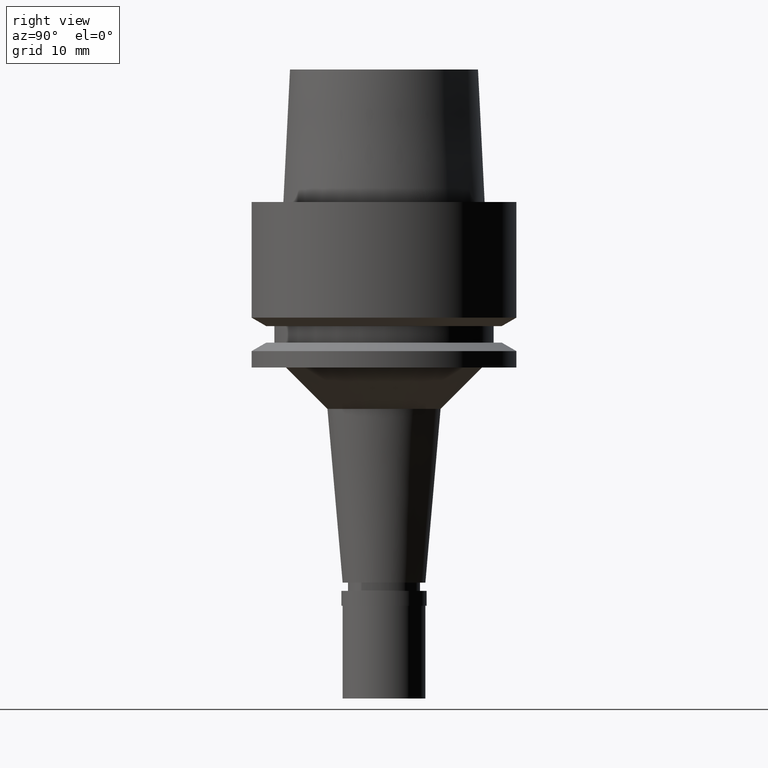
[diagram: clean part render]
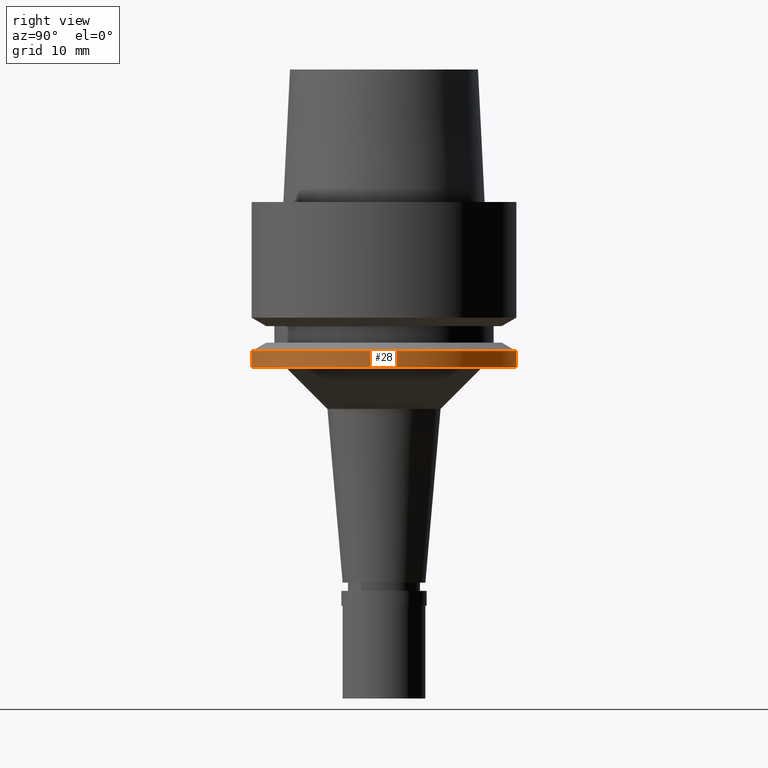
[diagram: same view with one face highlighted and labeled with its STEP entity id]
A machine part, right view. The second image highlights one B-rep face of the part: STEP entity #28.
In plain terms, the highlighted cylindrical surface (partial cylindrical patch) has radius 16 mm, axis along (0, 0, -1).
Its self-contained STEP definition (entity closure, byte-faithful):
#28 = ADVANCED_FACE ( 'NONE', ( #486 ), #1978, .T. ) ;
#260 = CARTESIAN_POINT ( 'NONE',  ( 0.0000000000000000000, -16.00000000000000000, -18.02072594216000212 ) ) ;
#288 = VERTEX_POINT ( 'NONE', #318 ) ;
#307 = DIRECTION ( 'NONE',  ( 0.0000000000000000000, -1.000000000000000000, 0.0000000000000000000 ) ) ;
#318 = CARTESIAN_POINT ( 'NONE',  ( 0.0000000000000000000, -16.00000000000000000, -20.00000000000000000 ) ) ;
#366 = LINE ( 'NONE', #2683, #624 ) ;
#423 = LINE ( 'NONE', #260, #1202 ) ;
#486 = FACE_OUTER_BOUND ( 'NONE', #1888, .T. ) ;
#494 = CARTESIAN_POINT ( 'NONE',  ( 0.0000000000000000000, 0.0000000000000000000, -20.00000000000000000 ) ) ;
#514 = AXIS2_PLACEMENT_3D ( 'NONE', #1126, #903, #307 ) ;
#617 = CARTESIAN_POINT ( 'NONE',  ( 0.0000000000000000000, -16.00000000000000000, -18.02072594216000212 ) ) ;
#624 = VECTOR ( 'NONE', #825, 1000.000000000000000 ) ;
#825 = DIRECTION ( 'NONE',  ( 0.0000000000000000000, 4.783562901008000077E-13, -1.000000000000000000 ) ) ;
#903 = DIRECTION ( 'NONE',  ( 0.0000000000000000000, 0.0000000000000000000, -1.000000000000000000 ) ) ;
#971 = DIRECTION ( 'NONE',  ( 0.0000000000000000000, 0.0000000000000000000, 1.000000000000000000 ) ) ;
#983 = CARTESIAN_POINT ( 'NONE',  ( 0.0000000000000000000, 0.0000000000000000000, -18.02072594216000212 ) ) ;
#1077 = VERTEX_POINT ( 'NONE', #1149 ) ;
#1126 = CARTESIAN_POINT ( 'NONE',  ( 0.0000000000000000000, 0.0000000000000000000, 19.61500000000000199 ) ) ;
#1149 = CARTESIAN_POINT ( 'NONE',  ( 0.0000000000000000000, 16.00000000000000000, -20.00000000000000000 ) ) ;
#1202 = VECTOR ( 'NONE', #1255, 1000.000000000000000 ) ;
#1255 = DIRECTION ( 'NONE',  ( 0.0000000000000000000, -4.783562901008000077E-13, -1.000000000000000000 ) ) ;
#1324 = AXIS2_PLACEMENT_3D ( 'NONE', #983, #2369, #1559 ) ;
#1487 = EDGE_CURVE ( 'NONE', #1762, #1077, #366, .T. ) ;
#1559 = DIRECTION ( 'NONE',  ( 0.0000000000000000000, 1.000000000000000000, 0.0000000000000000000 ) ) ;
#1566 = EDGE_CURVE ( 'NONE', #1762, #1964, #2455, .T. ) ;
#1684 = EDGE_CURVE ( 'NONE', #288, #1077, #2033, .T. ) ;
#1762 = VERTEX_POINT ( 'NONE', #1879 ) ;
#1797 = DIRECTION ( 'NONE',  ( 0.0000000000000000000, -1.000000000000000000, 0.0000000000000000000 ) ) ;
#1820 = AXIS2_PLACEMENT_3D ( 'NONE', #494, #971, #1797 ) ;
#1879 = CARTESIAN_POINT ( 'NONE',  ( 0.0000000000000000000, 16.00000000000000000, -18.02072594216000212 ) ) ;
#1888 = EDGE_LOOP ( 'NONE', ( #1921, #2136, #2331, #2238 ) ) ;
#1921 = ORIENTED_EDGE ( 'NONE', *, *, #1566, .T. ) ;
#1964 = VERTEX_POINT ( 'NONE', #617 ) ;
#1978 = CYLINDRICAL_SURFACE ( 'NONE', #514, 16.00000000000000000 ) ;
#2033 = CIRCLE ( 'NONE', #1820, 16.00000000000000000 ) ;
#2136 = ORIENTED_EDGE ( 'NONE', *, *, #2330, .T. ) ;
#2238 = ORIENTED_EDGE ( 'NONE', *, *, #1487, .F. ) ;
#2330 = EDGE_CURVE ( 'NONE', #1964, #288, #423, .T. ) ;
#2331 = ORIENTED_EDGE ( 'NONE', *, *, #1684, .T. ) ;
#2369 = DIRECTION ( 'NONE',  ( 0.0000000000000000000, 0.0000000000000000000, -1.000000000000000000 ) ) ;
#2455 = CIRCLE ( 'NONE', #1324, 16.00000000000000000 ) ;
#2683 = CARTESIAN_POINT ( 'NONE',  ( 0.0000000000000000000, 16.00000000000000000, -18.02072594216000212 ) ) ;